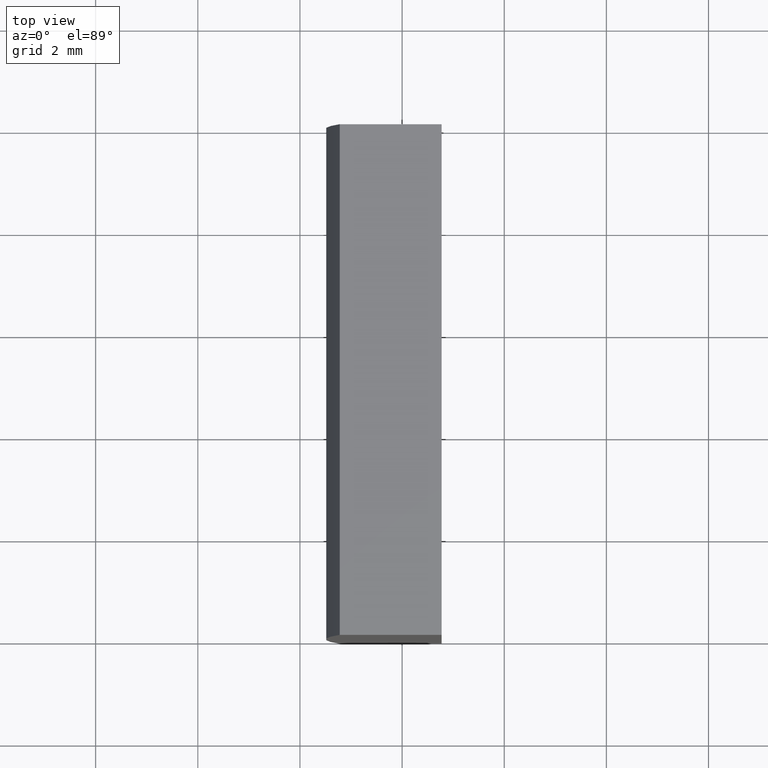
[diagram: clean part render]
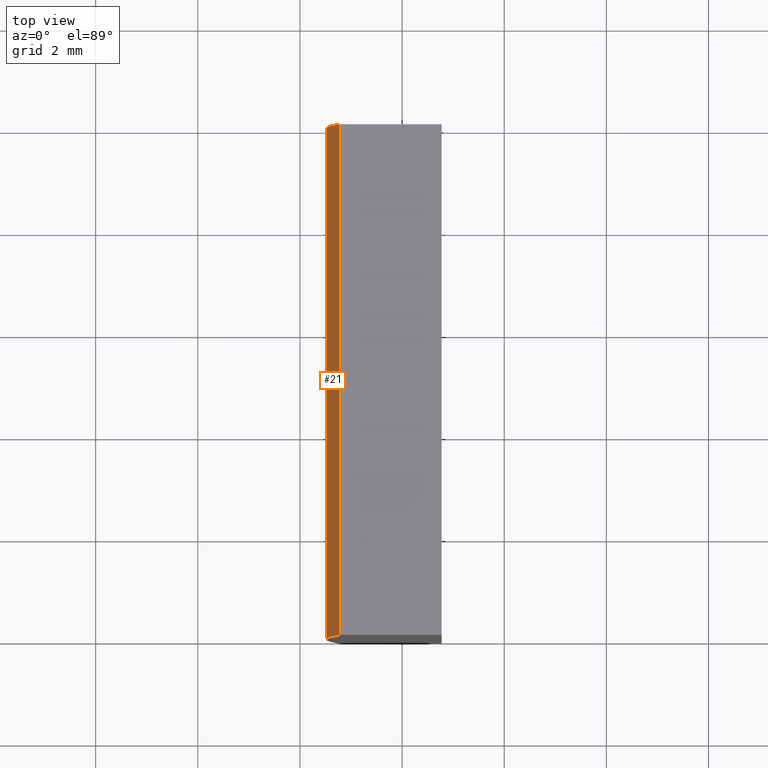
[diagram: same view with one face highlighted and labeled with its STEP entity id]
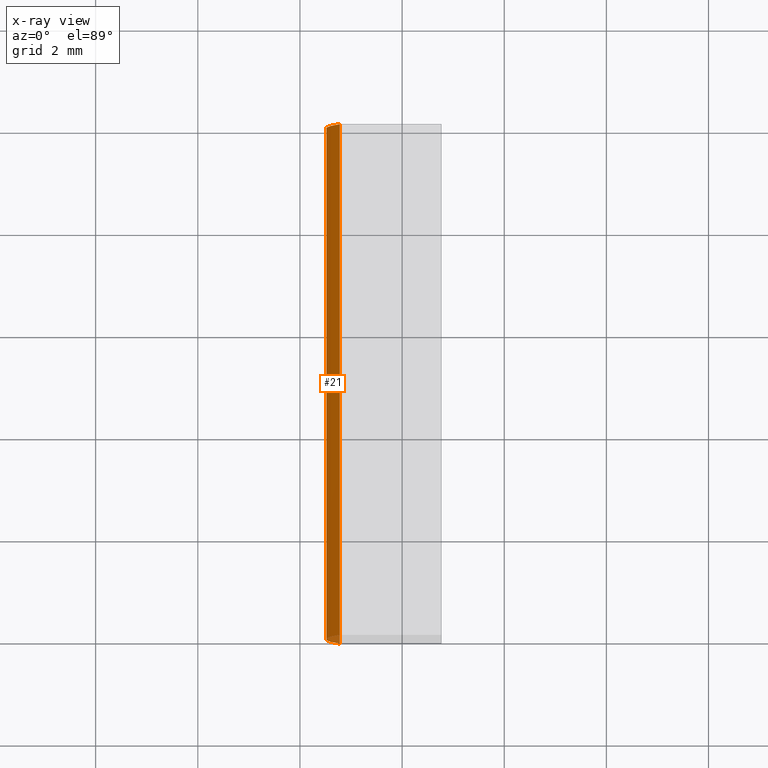
[diagram: x-ray of the same camera — body ghosted, the highlighted face saturated]
A machine part, top view. The second image highlights one B-rep face of the part: STEP entity #21.
The next image is the same camera in x-ray: the body ghosted, the highlighted face saturated — about 1% of this face is hidden behind the body in this view.
In plain terms, the highlighted cylindrical surface (partial cylindrical patch) has radius 45.85 mm, axis along (-0, -1, -0).
Its self-contained STEP definition (entity closure, byte-faithful):
#1 = FACE_OUTER_BOUND ( 'NONE', #196, .T. ) ;
#2 = CARTESIAN_POINT ( 'NONE',  ( -41.22135213884472900, 10.00000000000000000, -5.000000000000000000 ) ) ;
#5 = CIRCLE ( 'NONE', #62, 45.85000000000000100 ) ;
#8 = VERTEX_POINT ( 'NONE', #116 ) ;
#9 = EDGE_CURVE ( 'NONE', #186, #22, #109, .T. ) ;
#10 = CARTESIAN_POINT ( 'NONE',  ( 4.355204334851265500, 0.0000000000000000000, 4.286263797015675000E-017 ) ) ;
#18 = DIRECTION ( 'NONE',  ( 0.0000000000000000000, 0.0000000000000000000, 1.000000000000000000 ) ) ;
#20 = CARTESIAN_POINT ( 'NONE',  ( -41.22135213884472900, 10.00000000000000000, 5.000000000000000000 ) ) ;
#21 = ADVANCED_FACE ( 'NONE', ( #1 ), #98, .T. ) ;
#22 = VERTEX_POINT ( 'NONE', #113 ) ;
#23 = LINE ( 'NONE', #20, #71 ) ;
#29 = ORIENTED_EDGE ( 'NONE', *, *, #121, .T. ) ;
#37 = AXIS2_PLACEMENT_3D ( 'NONE', #142, #168, #18 ) ;
#56 = EDGE_CURVE ( 'NONE', #186, #8, #141, .T. ) ;
#60 = DIRECTION ( 'NONE',  ( 0.0000000000000000000, 1.000000000000000000, 0.0000000000000000000 ) ) ;
#62 = AXIS2_PLACEMENT_3D ( 'NONE', #10, #60, #77 ) ;
#71 = VECTOR ( 'NONE', #163, 1000.000000000000000 ) ;
#76 = EDGE_CURVE ( 'NONE', #8, #111, #23, .T. ) ;
#77 = DIRECTION ( 'NONE',  ( 0.0000000000000000000, 0.0000000000000000000, 1.000000000000000000 ) ) ;
#80 = DIRECTION ( 'NONE',  ( 0.0000000000000000000, 0.0000000000000000000, -1.000000000000000000 ) ) ;
#98 = CYLINDRICAL_SURFACE ( 'NONE', #197, 45.85000000000000100 ) ;
#104 = DIRECTION ( 'NONE',  ( -0.0000000000000000000, -1.000000000000000000, -0.0000000000000000000 ) ) ;
#109 = LINE ( 'NONE', #2, #149 ) ;
#111 = VERTEX_POINT ( 'NONE', #203 ) ;
#113 = CARTESIAN_POINT ( 'NONE',  ( -41.22135213884472900, 0.0000000000000000000, -5.000000000000000000 ) ) ;
#115 = CARTESIAN_POINT ( 'NONE',  ( -41.22135213884472900, 10.00000000000000000, -5.000000000000000000 ) ) ;
#116 = CARTESIAN_POINT ( 'NONE',  ( -41.22135213884472900, 10.00000000000000000, 5.000000000000000000 ) ) ;
#121 = EDGE_CURVE ( 'NONE', #22, #111, #5, .T. ) ;
#124 = ORIENTED_EDGE ( 'NONE', *, *, #76, .F. ) ;
#136 = DIRECTION ( 'NONE',  ( -0.0000000000000000000, -1.000000000000000000, -0.0000000000000000000 ) ) ;
#141 = CIRCLE ( 'NONE', #37, 45.85000000000000100 ) ;
#142 = CARTESIAN_POINT ( 'NONE',  ( 4.355204334851265500, 10.00000000000000000, 4.286263797015675000E-017 ) ) ;
#143 = ORIENTED_EDGE ( 'NONE', *, *, #56, .F. ) ;
#149 = VECTOR ( 'NONE', #136, 1000.000000000000000 ) ;
#163 = DIRECTION ( 'NONE',  ( -0.0000000000000000000, -1.000000000000000000, -0.0000000000000000000 ) ) ;
#168 = DIRECTION ( 'NONE',  ( 0.0000000000000000000, 1.000000000000000000, 0.0000000000000000000 ) ) ;
#169 = ORIENTED_EDGE ( 'NONE', *, *, #9, .T. ) ;
#186 = VERTEX_POINT ( 'NONE', #115 ) ;
#189 = CARTESIAN_POINT ( 'NONE',  ( 4.355204334851265500, 10.00000000000000000, 4.286263797015675000E-017 ) ) ;
#196 = EDGE_LOOP ( 'NONE', ( #29, #124, #143, #169 ) ) ;
#197 = AXIS2_PLACEMENT_3D ( 'NONE', #189, #104, #80 ) ;
#203 = CARTESIAN_POINT ( 'NONE',  ( -41.22135213884472900, 0.0000000000000000000, 5.000000000000000000 ) ) ;